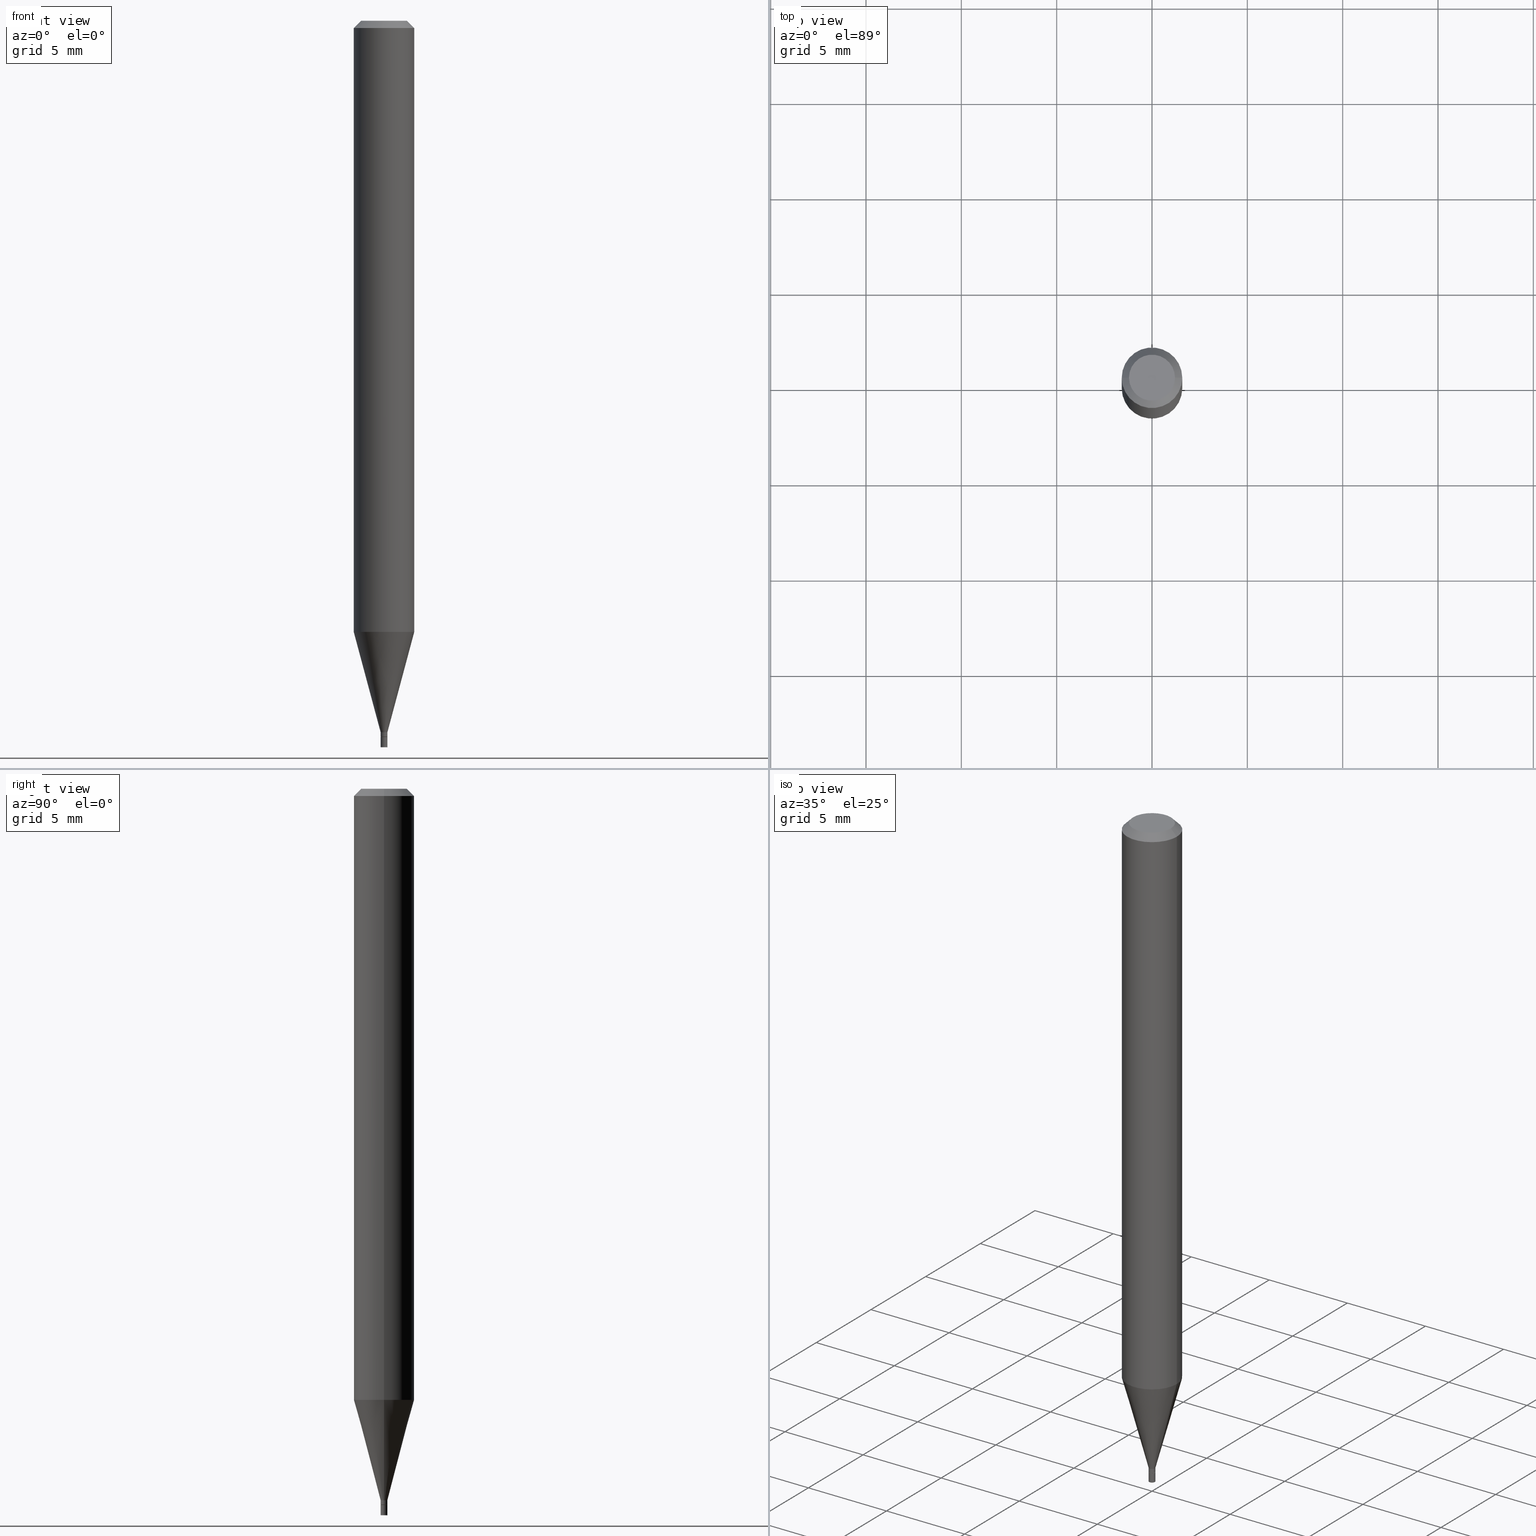
[diagram: canonical four-view strip — front | top / right | iso, engineering-drawing reading convention]
A machine part, canonical four-view strip (front | top / right | iso — engineering-drawing reading convention). The complete STEP part file that produces these views, byte-faithful:
ISO-10303-21;
HEADER;
FILE_DESCRIPTION (( 'STEP AP203' ),
    '1' );
FILE_NAME ('02247.STEP',
    '2024-03-18T19:56:50',
    ( '' ),
    ( '' ),
    'SwSTEP 2.0',
    'SolidWorks 2023',
    '' );
FILE_SCHEMA (( 'CONFIG_CONTROL_DESIGN' ));
ENDSEC;

DATA;
#1 = PRODUCT_DEFINITION ( 'UNKNOWN', '', #348, #64 ) ;
#2 = COORDINATED_UNIVERSAL_TIME_OFFSET ( 5, 0, .BEHIND. ) ;
#3 = LINE ( 'NONE', #331, #208 ) ;
#4 = VECTOR ( 'NONE', #338, 39.37007874015748854 ) ;
#5 = PERSON_AND_ORGANIZATION ( #27, #134 ) ;
#6 = CARTESIAN_POINT ( 'NONE',  ( 3.616848364347817323E-29, -5.163900900149012660E-15, -1.479000000000000092 ) ) ;
#7 = ADVANCED_FACE ( 'NONE', ( #453 ), #315, .T. ) ;
#8 = ORIENTED_EDGE ( 'NONE', *, *, #104, .F. ) ;
#9 = DIRECTION ( 'NONE',  ( -2.445468806185136597E-29, 3.491481338843145583E-15, 1.000000000000000000 ) ) ;
#10 = DIRECTION ( 'NONE',  ( 0.000000000000000000, 0.000000000000000000, 1.000000000000000000 ) ) ;
#11 = EDGE_LOOP ( 'NONE', ( #447, #314 ) ) ;
#12 = DIRECTION ( 'NONE',  ( -2.445468806185136597E-29, 3.491481338843145583E-15, 1.000000000000000000 ) ) ;
#13 = VERTEX_POINT ( 'NONE', #236 ) ;
#14 = CIRCLE ( 'NONE', #454, 0.007000000000000001013 ) ;
#15 = AXIS2_PLACEMENT_3D ( 'NONE', #267, #82, #375 ) ;
#16 = PERSON_AND_ORGANIZATION_ROLE ( 'creator' ) ;
#17 = DIRECTION ( 'NONE',  ( 1.000000000000000000, -6.982962677686273021E-15, 0.000000000000000000 ) ) ;
#18 = PLANE ( 'NONE',  #219 ) ;
#19 = ORIENTED_EDGE ( 'NONE', *, *, #178, .F. ) ;
#20 = CARTESIAN_POINT ( 'NONE',  ( -0.06249999999999999306, -3.961710467772130736E-15, -1.261871180179927610 ) ) ;
#21 = VERTEX_POINT ( 'NONE', #387 ) ;
#22 = CARTESIAN_POINT ( 'NONE',  ( -0.06250000000000000000, 3.840629472727444916E-16, -0.01499999999999999944 ) ) ;
#23 = ORIENTED_EDGE ( 'NONE', *, *, #67, .T. ) ;
#24 = APPROVAL_DATE_TIME ( #287, #244 ) ;
#25 = AXIS2_PLACEMENT_3D ( 'NONE', #139, #248, #103 ) ;
#26 = ORIENTED_EDGE ( 'NONE', *, *, #67, .F. ) ;
#27 = PERSON ( 'UNSPECIFIED', 'UNSPECIFIED', 'UNSPECIFIED', ('UNSPECIFIED'), ('UNSPECIFIED'), ('UNSPECIFIED') ) ;
#28 = ORIENTED_EDGE ( 'NONE', *, *, #359, .T. ) ;
#29 = DIRECTION ( 'NONE',  ( 1.000000000000000000, -6.982962677686267499E-15, 5.108144071313017768E-29 ) ) ;
#30 = APPROVAL_DATE_TIME ( #212, #386 ) ;
#31 = EDGE_CURVE ( 'NONE', #255, #21, #205, .T. ) ;
#32 = CONICAL_SURFACE ( 'NONE', #362, 0.06250000000000000000, 0.7853981633973876608 ) ;
#33 = LOCAL_TIME ( 15, 56, 50.00000000000000000, #385 ) ;
#34 = DATE_AND_TIME ( #455, #157 ) ;
#35 = DIRECTION ( 'NONE',  ( -2.445468806185136597E-29, 3.491481338843145583E-15, 1.000000000000000000 ) ) ;
#36 = ORIENTED_EDGE ( 'NONE', *, *, #363, .F. ) ;
#37 = FACE_OUTER_BOUND ( 'NONE', #192, .T. ) ;
#38 = VECTOR ( 'NONE', #98, 39.37007874015748143 ) ;
#39 = FACE_OUTER_BOUND ( 'NONE', #112, .T. ) ;
#40 = DIRECTION ( 'NONE',  ( 1.000000000000000000, -6.982962677686270655E-15, 0.000000000000000000 ) ) ;
#41 = CARTESIAN_POINT ( 'NONE',  ( -0.006500000000000000569, -5.117715622324605713E-15, -1.479000000000000092 ) ) ;
#42 = PERSON_AND_ORGANIZATION ( #27, #134 ) ;
#43 = ADVANCED_FACE ( 'NONE', ( #130 ), #376, .T. ) ;
#44 = LINE ( 'NONE', #337, #214 ) ;
#45 = EDGE_CURVE ( 'NONE', #207, #392, #268, .T. ) ;
#46 = ADVANCED_BREP_SHAPE_REPRESENTATION ( '02247', ( #328, #395, #431 ), #54 ) ;
#47 = VECTOR ( 'NONE', #76, 39.37007874015748143 ) ;
#48 =( NAMED_UNIT ( * ) PLANE_ANGLE_UNIT ( ) SI_UNIT ( $, .RADIAN. ) );
#49 = VERTEX_POINT ( 'NONE', #50 ) ;
#50 = CARTESIAN_POINT ( 'NONE',  ( 0.006500000000000000569, -5.209290157553973331E-15, -1.479000000000000092 ) ) ;
#51 = ORIENTED_EDGE ( 'NONE', *, *, #448, .T. ) ;
#52 = AXIS2_PLACEMENT_3D ( 'NONE', #284, #425, #29 ) ;
#53 = ADVANCED_FACE ( 'NONE', ( #411 ), #84, .F. ) ;
#54 =( GEOMETRIC_REPRESENTATION_CONTEXT ( 3 ) GLOBAL_UNCERTAINTY_ASSIGNED_CONTEXT ( ( #166 ) ) GLOBAL_UNIT_ASSIGNED_CONTEXT ( ( #380, #48, #196 ) ) REPRESENTATION_CONTEXT ( 'NONE', 'WORKASPACE' ) );
#55 = EDGE_CURVE ( 'NONE', #392, #197, #177, .T. ) ;
#56 = ORIENTED_EDGE ( 'NONE', *, *, #185, .F. ) ;
#57 = DIRECTION ( 'NONE',  ( 1.000000000000000000, -6.982962677686332186E-15, 0.000000000000000000 ) ) ;
#58 = DIRECTION ( 'NONE',  ( 1.000000000000000000, -6.982962677686257244E-15, 0.000000000000000000 ) ) ;
#59 = VERTEX_POINT ( 'NONE', #259 ) ;
#60 = DIRECTION ( 'NONE',  ( 1.000000000000000000, -6.982962677686265922E-15, 4.876176775795935793E-29 ) ) ;
#61 = ORIENTED_EDGE ( 'NONE', *, *, #312, .F. ) ;
#62 = CIRCLE ( 'NONE', #318, 0.006999999999999922951 ) ;
#63 = DIRECTION ( 'NONE',  ( -2.445468806185136877E-29, 3.491481338843145188E-15, 1.000000000000000000 ) ) ;
#64 = DESIGN_CONTEXT ( 'detailed design', #281, 'design' ) ;
#65 = CARTESIAN_POINT ( 'NONE',  ( 3.592393676285966338E-29, -5.128986086760581011E-15, -1.469000000000000083 ) ) ;
#66 = COORDINATED_UNIVERSAL_TIME_OFFSET ( 5, 0, .BEHIND. ) ;
#67 = EDGE_CURVE ( 'NONE', #277, #197, #215, .T. ) ;
#68 = ORIENTED_EDGE ( 'NONE', *, *, #450, .F. ) ;
#69 = PERSON_AND_ORGANIZATION ( #27, #134 ) ;
#70 = EDGE_CURVE ( 'NONE', #255, #381, #62, .T. ) ;
#71 = ADVANCED_FACE ( 'NONE', ( #295 ), #333, .T. ) ;
#72 = AXIS2_PLACEMENT_3D ( 'NONE', #378, #121, #91 ) ;
#73 = DIRECTION ( 'NONE',  ( -1.000000000000000000, 6.982962677686266711E-15, 0.000000000000000000 ) ) ;
#74 = CC_DESIGN_PERSON_AND_ORGANIZATION_ASSIGNMENT ( #69, #364, ( #200 ) ) ;
#75 = ORIENTED_EDGE ( 'NONE', *, *, #372, .F. ) ;
#76 = DIRECTION ( 'NONE',  ( -0.7071067811865642261, 7.493145998870414114E-15, 0.7071067811865309194 ) ) ;
#77 = CARTESIAN_POINT ( 'NONE',  ( -0.006999999999999920348, -5.079248095257373954E-15, -1.469000000000000083 ) ) ;
#78 = EDGE_LOOP ( 'NONE', ( #19, #321 ) ) ;
#79 = LINE ( 'NONE', #146, #327 ) ;
#80 = CIRCLE ( 'NONE', #301, 0.007000000000000001013 ) ;
#81 = DIRECTION ( 'NONE',  ( -1.000000000000000000, 6.982962677686266711E-15, 0.000000000000000000 ) ) ;
#82 = DIRECTION ( 'NONE',  ( -2.445468806185136597E-29, 3.491481338843145583E-15, 1.000000000000000000 ) ) ;
#83 = VERTEX_POINT ( 'NONE', #329 ) ;
#84 = PLANE ( 'NONE',  #72 ) ;
#85 = DIRECTION ( 'NONE',  ( 1.000000000000000000, -6.982962677686332186E-15, 0.000000000000000000 ) ) ;
#86 = LENGTH_MEASURE_WITH_UNIT ( LENGTH_MEASURE( 0.02539999999999999897 ), #275 );
#87 = AXIS2_PLACEMENT_3D ( 'NONE', #405, #366, #181 ) ;
#88 = AXIS2_PLACEMENT_3D ( 'NONE', #245, #310, #92 ) ;
#89 = PERSON_AND_ORGANIZATION_ROLE ( 'design_owner' ) ;
#90 = CARTESIAN_POINT ( 'NONE',  ( 0.06249999999999999306, -4.842234844977585811E-15, -1.261871180179927610 ) ) ;
#91 = DIRECTION ( 'NONE',  ( -1.000000000000000000, 6.982962677686265922E-15, -4.876176775795935793E-29 ) ) ;
#92 = DIRECTION ( 'NONE',  ( 1.000000000000000000, -6.982962677686266711E-15, 4.876176775795935232E-29 ) ) ;
#93 = EDGE_CURVE ( 'NONE', #59, #222, #3, .T. ) ;
#94 = ORIENTED_EDGE ( 'NONE', *, *, #204, .T. ) ;
#95 = DIMENSIONAL_EXPONENTS ( 1.000000000000000000, 0.000000000000000000, 0.000000000000000000, 0.000000000000000000, 0.000000000000000000, 0.000000000000000000, 0.000000000000000000 ) ;
#96 = ORIENTED_EDGE ( 'NONE', *, *, #45, .F. ) ;
#97 = DIRECTION ( 'NONE',  ( 1.000000000000000000, -6.982962677686257244E-15, 0.000000000000000000 ) ) ;
#98 = DIRECTION ( 'NONE',  ( -2.445468806185136877E-29, 3.491481338843145188E-15, 1.000000000000000000 ) ) ;
#99 = ORIENTED_EDGE ( 'NONE', *, *, #434, .T. ) ;
#100 = ORIENTED_EDGE ( 'NONE', *, *, #402, .F. ) ;
#101 = AXIS2_PLACEMENT_3D ( 'NONE', #65, #144, #290 ) ;
#102 = CARTESIAN_POINT ( 'NONE',  ( 3.085866608554036727E-29, -4.405799677622194141E-15, -1.261871180179927610 ) ) ;
#103 = DIRECTION ( 'NONE',  ( 1.000000000000000000, -6.982962677686265922E-15, 4.876176775795935793E-29 ) ) ;
#104 = EDGE_CURVE ( 'NONE', #270, #277, #325, .T. ) ;
#105 = COORDINATED_UNIVERSAL_TIME_OFFSET ( 5, 0, .BEHIND. ) ;
#106 = PRODUCT_DEFINITION_SHAPE ( 'NONE', 'NONE',  #1 ) ;
#107 = CONICAL_SURFACE ( 'NONE', #377, 0.006500000000000000569, 0.7853981633974718157 ) ;
#108 = CARTESIAN_POINT ( 'NONE',  ( -0.06250000000000000000, -1.784996739002358191E-15, -0.01499999999999999944 ) ) ;
#109 = DIRECTION ( 'NONE',  ( 1.000000000000000000, -6.982962677686257244E-15, 0.000000000000000000 ) ) ;
#110 = CARTESIAN_POINT ( 'NONE',  ( 3.085866608554036727E-29, -4.405799677622194141E-15, -1.261871180179927610 ) ) ;
#111 = DIRECTION ( 'NONE',  ( -2.445468806185136877E-29, 3.491481338843145188E-15, 1.000000000000000000 ) ) ;
#112 = EDGE_LOOP ( 'NONE', ( #412, #161, #280, #138 ) ) ;
#113 = CARTESIAN_POINT ( 'NONE',  ( 0.006999999999999920348, -5.177866825504383900E-15, -1.469000000000000083 ) ) ;
#114 = DIRECTION ( 'NONE',  ( 1.000000000000000000, -6.982962677686266711E-15, 4.876176775795935232E-29 ) ) ;
#115 = CARTESIAN_POINT ( 'NONE',  ( -0.006999999999999922951, -5.112417167976384888E-15, -1.478500000000000147 ) ) ;
#116 = COORDINATED_UNIVERSAL_TIME_OFFSET ( 5, 0, .BEHIND. ) ;
#117 = DIRECTION ( 'NONE',  ( 0.2588190451025213501, 1.565188264969621968E-15, 0.9659258262890682012 ) ) ;
#118 = CC_DESIGN_PERSON_AND_ORGANIZATION_ASSIGNMENT ( #456, #211, ( #348 ) ) ;
#119 = ORIENTED_EDGE ( 'NONE', *, *, #450, .T. ) ;
#120 = DATE_AND_TIME ( #265, #355 ) ;
#121 = DIRECTION ( 'NONE',  ( 2.438088387897960049E-29, -3.491481338843145188E-15, -1.000000000000000000 ) ) ;
#122 = FACE_OUTER_BOUND ( 'NONE', #202, .T. ) ;
#123 = DIRECTION ( 'NONE',  ( 1.000000000000000000, 0.000000000000000000, 0.000000000000000000 ) ) ;
#124 = CONICAL_SURFACE ( 'NONE', #399, 0.006999999999999920348, 0.2617993877991500740 ) ;
#125 = DIRECTION ( 'NONE',  ( -2.445468806185136597E-29, 3.491481338843145583E-15, 1.000000000000000000 ) ) ;
#126 = ADVANCED_FACE ( 'NONE', ( #261 ), #257, .T. ) ;
#127 = DIRECTION ( 'NONE',  ( 1.000000000000000000, -6.982962677686266711E-15, 4.876176775795935793E-29 ) ) ;
#128 = ORIENTED_EDGE ( 'NONE', *, *, #31, .T. ) ;
#129 = DIRECTION ( 'NONE',  ( -1.000000000000000000, 6.982962677686265922E-15, -4.876176775795935793E-29 ) ) ;
#130 = FACE_OUTER_BOUND ( 'NONE', #319, .T. ) ;
#131 = ORIENTED_EDGE ( 'NONE', *, *, #178, .T. ) ;
#132 = CONICAL_SURFACE ( 'NONE', #442, 0.06250000000000000000, 0.7853981633973876608 ) ;
#133 = VECTOR ( 'NONE', #349, 39.37007874015748143 ) ;
#134 = ORGANIZATION ( 'UNSPECIFIED', 'UNSPECIFIED', '' ) ;
#135 = ADVANCED_FACE ( 'NONE', ( #218 ), #132, .T. ) ;
#136 = EDGE_CURVE ( 'NONE', #13, #49, #163, .T. ) ;
#137 = FACE_OUTER_BOUND ( 'NONE', #78, .T. ) ;
#138 = ORIENTED_EDGE ( 'NONE', *, *, #223, .F. ) ;
#139 = CARTESIAN_POINT ( 'NONE',  ( 3.576687321579069994E-29, -5.368277968210015545E-15, -1.500000000000000222 ) ) ;
#140 = CC_DESIGN_PERSON_AND_ORGANIZATION_ASSIGNMENT ( #42, #89, ( #367 ) ) ;
#141 = VECTOR ( 'NONE', #63, 39.37007874015748143 ) ;
#142 = CC_DESIGN_APPROVAL ( #244, ( #200 ) ) ;
#143 = CALENDAR_DATE ( 2024, 18, 3 ) ;
#144 = DIRECTION ( 'NONE',  ( -2.445468806185136597E-29, 3.491481338843145583E-15, 1.000000000000000000 ) ) ;
#145 = DATE_TIME_ROLE ( 'classification_date' ) ;
#146 = CARTESIAN_POINT ( 'NONE',  ( -0.006999999999999922083, 4.973799150320645938E-17, -3.443254563178395329E-31 ) ) ;
#147 = CLOSED_SHELL ( 'NONE', ( #126, #354, #216, #240 ) ) ;
#148 = CIRCLE ( 'NONE', #406, 0.04749999999999999362 ) ;
#149 = APPROVAL_PERSON_ORGANIZATION ( #410, #386, #271 ) ;
#150 = DIRECTION ( 'NONE',  ( -2.445468806185136597E-29, 3.491481338843145583E-15, 1.000000000000000000 ) ) ;
#151 = DIRECTION ( 'NONE',  ( -2.445468806185136597E-29, 3.491481338843145583E-15, 1.000000000000000000 ) ) ;
#152 = CARTESIAN_POINT ( 'NONE',  ( 3.616848364347817323E-29, -5.163900900149012660E-15, -1.479000000000000092 ) ) ;
#153 = CALENDAR_DATE ( 2024, 18, 3 ) ;
#154 = DIRECTION ( 'NONE',  ( -2.445468806185136597E-29, 3.491481338843145583E-15, 1.000000000000000000 ) ) ;
#155 = DIRECTION ( 'NONE',  ( -2.445468806185136877E-29, 3.491481338843145188E-15, 1.000000000000000000 ) ) ;
#156 = AXIS2_PLACEMENT_3D ( 'NONE', #383, #339, #17 ) ;
#157 = LOCAL_TIME ( 15, 56, 50.00000000000000000, #105 ) ;
#158 = CC_DESIGN_DATE_AND_TIME_ASSIGNMENT ( #34, #145, ( #200 ) ) ;
#159 = EDGE_LOOP ( 'NONE', ( #28, #23, #264, #394 ) ) ;
#160 = CARTESIAN_POINT ( 'NONE',  ( 3.592393676285966338E-29, -5.128986086760581011E-15, -1.469000000000000083 ) ) ;
#161 = ORIENTED_EDGE ( 'NONE', *, *, #320, .T. ) ;
#162 = ADVANCED_FACE ( 'NONE', ( #37 ), #32, .T. ) ;
#163 = CIRCLE ( 'NONE', #238, 0.006500000000000000569 ) ;
#164 = EDGE_LOOP ( 'NONE', ( #168, #344, #195, #173 ) ) ;
#165 = CARTESIAN_POINT ( 'NONE',  ( 4.888073874384003304E-17, 0.006999999999994836741, -1.479000000000000092 ) ) ;
#166 = UNCERTAINTY_MEASURE_WITH_UNIT (LENGTH_MEASURE( 1.000000000000000082E-05 ), #380, 'distance_accuracy_value', 'NONE');
#167 = ORIENTED_EDGE ( 'NONE', *, *, #358, .T. ) ;
#168 = ORIENTED_EDGE ( 'NONE', *, *, #204, .F. ) ;
#169 = CARTESIAN_POINT ( 'NONE',  ( 3.616848364347817323E-29, -5.163900900149012660E-15, -1.479000000000000092 ) ) ;
#170 = ORIENTED_EDGE ( 'NONE', *, *, #304, .F. ) ;
#171 = VECTOR ( 'NONE', #436, 39.37007874015747433 ) ;
#172 = CIRCLE ( 'NONE', #15, 0.006999999999999920348 ) ;
#173 = ORIENTED_EDGE ( 'NONE', *, *, #408, .F. ) ;
#174 = EDGE_CURVE ( 'NONE', #381, #270, #79, .T. ) ;
#175 = CALENDAR_DATE ( 2024, 18, 3 ) ;
#176 = CC_DESIGN_PERSON_AND_ORGANIZATION_ASSIGNMENT ( #397, #428, ( #348 ) ) ;
#177 = CIRCLE ( 'NONE', #278, 0.06250000000000000000 ) ;
#178 = EDGE_CURVE ( 'NONE', #418, #59, #430, .T. ) ;
#179 = CARTESIAN_POINT ( 'NONE',  ( 0.000000000000000000, 0.000000000000000000, 0.000000000000000000 ) ) ;
#180 = AXIS2_PLACEMENT_3D ( 'NONE', #179, #35, #114 ) ;
#181 = DIRECTION ( 'NONE',  ( 1.000000000000000000, -6.982962677686266711E-15, 4.876176775795935793E-29 ) ) ;
#182 = ORIENTED_EDGE ( 'NONE', *, *, #45, .T. ) ;
#183 = DIRECTION ( 'NONE',  ( 1.000000000000000000, -6.982962677686257244E-15, 0.000000000000000000 ) ) ;
#184 = APPLICATION_PROTOCOL_DEFINITION ( 'international standard', 'config_control_design', 1994, #281 ) ;
#185 = EDGE_CURVE ( 'NONE', #277, #424, #229, .T. ) ;
#186 = DIRECTION ( 'NONE',  ( 1.000000000000000000, -6.982962677686270655E-15, 0.000000000000000000 ) ) ;
#187 = ORIENTED_EDGE ( 'NONE', *, *, #448, .F. ) ;
#188 = CLOSED_SHELL ( 'NONE', ( #465, #426, #162, #71, #323, #43, #266, #135, #53, #334, #7, #252 ) ) ;
#189 = CARTESIAN_POINT ( 'NONE',  ( 3.615625629944724521E-29, -5.162155159479591157E-15, -1.478500000000000147 ) ) ;
#190 = AXIS2_PLACEMENT_3D ( 'NONE', #357, #427, #60 ) ;
#191 = CARTESIAN_POINT ( 'NONE',  ( 0.06250000000000000000, -4.811533449433679005E-16, -0.01499999999999999944 ) ) ;
#192 = EDGE_LOOP ( 'NONE', ( #100, #182, #342, #61 ) ) ;
#193 = APPROVAL_STATUS ( 'not_yet_approved' ) ;
#194 = CARTESIAN_POINT ( 'NONE',  ( -4.460165479722938536E-44, 6.367934238710582481E-30, 1.823848854028390842E-15 ) ) ;
#195 = ORIENTED_EDGE ( 'NONE', *, *, #457, .T. ) ;
#196 =( NAMED_UNIT ( * ) SI_UNIT ( $, .STERADIAN. ) SOLID_ANGLE_UNIT ( ) );
#197 = VERTEX_POINT ( 'NONE', #108 ) ;
#198 = AXIS2_PLACEMENT_3D ( 'NONE', #404, #151, #466 ) ;
#199 = DIRECTION ( 'NONE',  ( -2.445468806185136597E-29, 3.491481338843145583E-15, 1.000000000000000000 ) ) ;
#200 = SECURITY_CLASSIFICATION ( '', '', #251 ) ;
#201 = CARTESIAN_POINT ( 'NONE',  ( 0.006999999999999922951, -5.211035898223394834E-15, -1.478500000000000147 ) ) ;
#202 = EDGE_LOOP ( 'NONE', ( #247, #462 ) ) ;
#203 = LINE ( 'NONE', #22, #388 ) ;
#204 = EDGE_CURVE ( 'NONE', #13, #381, #461, .T. ) ;
#205 = LINE ( 'NONE', #353, #133 ) ;
#206 = ORIENTED_EDGE ( 'NONE', *, *, #312, .T. ) ;
#207 = VERTEX_POINT ( 'NONE', #217 ) ;
#208 = VECTOR ( 'NONE', #155, 39.37007874015748143 ) ;
#209 = LOCAL_TIME ( 15, 56, 50.00000000000000000, #66 ) ;
#210 = APPROVAL ( #439, 'UNSPECIFIED' ) ;
#211 = PERSON_AND_ORGANIZATION_ROLE ( 'creator' ) ;
#212 = DATE_AND_TIME ( #143, #33 ) ;
#213 = AXIS2_PLACEMENT_3D ( 'NONE', #429, #403, #458 ) ;
#214 = VECTOR ( 'NONE', #345, 39.37007874015748143 ) ;
#215 = LINE ( 'NONE', #374, #370 ) ;
#216 = ADVANCED_FACE ( 'NONE', ( #39 ), #258, .T. ) ;
#217 = CARTESIAN_POINT ( 'NONE',  ( 0.04749999999999999362, -4.035134999187546083E-16, 1.823848854028393603E-15 ) ) ;
#218 = FACE_OUTER_BOUND ( 'NONE', #390, .T. ) ;
#219 = AXIS2_PLACEMENT_3D ( 'NONE', #165, #446, #129 ) ;
#220 = CARTESIAN_POINT ( 'NONE',  ( 3.668203209277705088E-31, -5.237222008264718399E-17, -0.01499999999999999944 ) ) ;
#221 = DIRECTION ( 'NONE',  ( 2.445468806185136597E-29, -3.491481338843145583E-15, -1.000000000000000000 ) ) ;
#222 = VERTEX_POINT ( 'NONE', #296 ) ;
#223 = EDGE_CURVE ( 'NONE', #222, #83, #80, .T. ) ;
#224 = PERSON_AND_ORGANIZATION ( #27, #134 ) ;
#225 = DIRECTION ( 'NONE',  ( 1.000000000000000000, -6.982962677686266711E-15, 0.000000000000000000 ) ) ;
#226 = EDGE_LOOP ( 'NONE', ( #330, #94, #231, #423 ) ) ;
#227 = APPROVAL_DATE_TIME ( #443, #210 ) ;
#228 = DIRECTION ( 'NONE',  ( -2.445468806185136597E-29, 3.491481338843145583E-15, 1.000000000000000000 ) ) ;
#229 = CIRCLE ( 'NONE', #249, 0.06250000000000000000 ) ;
#230 = CIRCLE ( 'NONE', #452, 0.06250000000000000000 ) ;
#231 = ORIENTED_EDGE ( 'NONE', *, *, #70, .F. ) ;
#232 = FACE_OUTER_BOUND ( 'NONE', #226, .T. ) ;
#233 = DIRECTION ( 'NONE',  ( 1.000000000000000000, -6.982962677686266711E-15, 4.876176775795935232E-29 ) ) ;
#234 = ORIENTED_EDGE ( 'NONE', *, *, #31, .F. ) ;
#235 = DATE_TIME_ROLE ( 'creation_date' ) ;
#236 = CARTESIAN_POINT ( 'NONE',  ( -0.006500000000000000569, -5.115066395150495301E-15, -1.479000000000000092 ) ) ;
#237 = LINE ( 'NONE', #421, #38 ) ;
#238 = AXIS2_PLACEMENT_3D ( 'NONE', #433, #368, #183 ) ;
#239 = ORIENTED_EDGE ( 'NONE', *, *, #408, .T. ) ;
#240 = ADVANCED_FACE ( 'NONE', ( #347 ), #18, .F. ) ;
#241 = CYLINDRICAL_SURFACE ( 'NONE', #88, 0.006999999999999922083 ) ;
#242 = CARTESIAN_POINT ( 'NONE',  ( -0.04749999999999999362, 3.578768372314242553E-16, 1.823848854028388475E-15 ) ) ;
#243 = EDGE_LOOP ( 'NONE', ( #26, #311, #282, #187 ) ) ;
#244 = APPROVAL ( #396, 'UNSPECIFIED' ) ;
#245 = CARTESIAN_POINT ( 'NONE',  ( 0.000000000000000000, 0.000000000000000000, 0.000000000000000000 ) ) ;
#246 = PLANE ( 'NONE',  #25 ) ;
#247 = ORIENTED_EDGE ( 'NONE', *, *, #463, .F. ) ;
#248 = DIRECTION ( 'NONE',  ( -2.438088387897960049E-29, 3.491481338843145188E-15, 1.000000000000000000 ) ) ;
#249 = AXIS2_PLACEMENT_3D ( 'NONE', #110, #432, #371 ) ;
#250 = DIRECTION ( 'NONE',  ( 1.000000000000000000, -6.982962677686262766E-15, 0.000000000000000000 ) ) ;
#251 = SECURITY_CLASSIFICATION_LEVEL ( 'unclassified' ) ;
#252 = ADVANCED_FACE ( 'NONE', ( #445 ), #343, .T. ) ;
#253 = PERSON_AND_ORGANIZATION ( #27, #134 ) ;
#254 = VECTOR ( 'NONE', #117, 39.37007874015747433 ) ;
#255 = VERTEX_POINT ( 'NONE', #201 ) ;
#256 = APPLICATION_CONTEXT ( 'configuration controlled 3d designs of mechanical parts and assemblies' ) ;
#257 = CYLINDRICAL_SURFACE ( 'NONE', #180, 0.007000000000000001013 ) ;
#258 = CYLINDRICAL_SURFACE ( 'NONE', #198, 0.007000000000000001013 ) ;
#259 = CARTESIAN_POINT ( 'NONE',  ( -0.007000000000000001013, -5.150823462703658756E-15, -1.500000000000000222 ) ) ;
#260 = EDGE_LOOP ( 'NONE', ( #283, #239, #128, #68 ) ) ;
#261 = FACE_OUTER_BOUND ( 'NONE', #449, .T. ) ;
#262 = EDGE_LOOP ( 'NONE', ( #308, #401, #274, #313 ) ) ;
#263 = AXIS2_PLACEMENT_3D ( 'NONE', #416, #199, #58 ) ;
#264 = ORIENTED_EDGE ( 'NONE', *, *, #55, .F. ) ;
#265 = CALENDAR_DATE ( 2024, 18, 3 ) ;
#266 = ADVANCED_FACE ( 'NONE', ( #391 ), #384, .T. ) ;
#267 = CARTESIAN_POINT ( 'NONE',  ( 3.592393676285966338E-29, -5.128986086760581011E-15, -1.469000000000000083 ) ) ;
#268 = LINE ( 'NONE', #191, #4 ) ;
#269 = DIRECTION ( 'NONE',  ( -2.445468806185136597E-29, 3.491481338843145583E-15, 1.000000000000000000 ) ) ;
#270 = VERTEX_POINT ( 'NONE', #417 ) ;
#271 = APPROVAL_ROLE ( '' ) ;
#272 = CARTESIAN_POINT ( 'NONE',  ( 0.000000000000000000, 0.000000000000000000, 0.000000000000000000 ) ) ;
#273 = APPLICATION_PROTOCOL_DEFINITION ( 'international standard', 'config_control_design', 1994, #256 ) ;
#274 = ORIENTED_EDGE ( 'NONE', *, *, #359, .F. ) ;
#275 =( LENGTH_UNIT ( ) NAMED_UNIT ( * ) SI_UNIT ( $, .METRE. ) );
#276 = DIRECTION ( 'NONE',  ( -2.445468806185136597E-29, 3.491481338843145583E-15, 1.000000000000000000 ) ) ;
#277 = VERTEX_POINT ( 'NONE', #20 ) ;
#278 = AXIS2_PLACEMENT_3D ( 'NONE', #444, #125, #225 ) ;
#279 = CC_DESIGN_APPROVAL ( #386, ( #348 ) ) ;
#280 = ORIENTED_EDGE ( 'NONE', *, *, #372, .T. ) ;
#281 = APPLICATION_CONTEXT ( 'configuration controlled 3d designs of mechanical parts and assemblies' ) ;
#282 = ORIENTED_EDGE ( 'NONE', *, *, #288, .T. ) ;
#283 = ORIENTED_EDGE ( 'NONE', *, *, #174, .F. ) ;
#284 = CARTESIAN_POINT ( 'NONE',  ( -4.460165479722938536E-44, 6.367934238710582481E-30, 1.823848854028390842E-15 ) ) ;
#285 = AXIS2_PLACEMENT_3D ( 'NONE', #272, #276, #233 ) ;
#286 = LOCAL_TIME ( 15, 56, 50.00000000000000000, #116 ) ;
#287 = DATE_AND_TIME ( #175, #209 ) ;
#288 = EDGE_CURVE ( 'NONE', #424, #392, #237, .T. ) ;
#289 = ORIENTED_EDGE ( 'NONE', *, *, #174, .T. ) ;
#290 = DIRECTION ( 'NONE',  ( 1.000000000000000000, -6.982962677686273021E-15, 0.000000000000000000 ) ) ;
#291 = SHAPE_DEFINITION_REPRESENTATION ( #106, #46 ) ;
#292 = DIRECTION ( 'NONE',  ( -2.445468806185136877E-29, 3.491481338843145188E-15, 1.000000000000000000 ) ) ;
#293 = CIRCLE ( 'NONE', #101, 0.006999999999999920348 ) ;
#294 = AXIS2_PLACEMENT_3D ( 'NONE', #169, #420, #97 ) ;
#295 = FACE_OUTER_BOUND ( 'NONE', #159, .T. ) ;
#296 = CARTESIAN_POINT ( 'NONE',  ( -0.007000000000000001013, -5.150823462703658756E-15, -1.479000000000000092 ) ) ;
#297 = CC_DESIGN_PERSON_AND_ORGANIZATION_ASSIGNMENT ( #224, #16, ( #1 ) ) ;
#298 = DIRECTION ( 'NONE',  ( -2.445468806185136597E-29, 3.491481338843145583E-15, 1.000000000000000000 ) ) ;
#299 = CARTESIAN_POINT ( 'NONE',  ( 0.007000000000000001013, -4.888073874380387486E-17, 3.413323743057155353E-31 ) ) ;
#300 = VERTEX_POINT ( 'NONE', #242 ) ;
#301 = AXIS2_PLACEMENT_3D ( 'NONE', #152, #298, #407 ) ;
#302 = DIRECTION ( 'NONE',  ( 1.000000000000000000, -6.982962677686266711E-15, 0.000000000000000000 ) ) ;
#303 = CARTESIAN_POINT ( 'NONE',  ( 3.615625629944724521E-29, -5.162155159479591157E-15, -1.478500000000000147 ) ) ;
#304 = EDGE_CURVE ( 'NONE', #83, #222, #14, .T. ) ;
#305 = ORIENTED_EDGE ( 'NONE', *, *, #402, .T. ) ;
#306 = DIRECTION ( 'NONE',  ( 1.000000000000000000, -6.982962677686267499E-15, 5.108144071313017768E-29 ) ) ;
#307 = DIRECTION ( 'NONE',  ( -2.445468806185136597E-29, 3.491481338843145583E-15, 1.000000000000000000 ) ) ;
#308 = ORIENTED_EDGE ( 'NONE', *, *, #363, .T. ) ;
#309 = AXIS2_PLACEMENT_3D ( 'NONE', #102, #360, #250 ) ;
#310 = DIRECTION ( 'NONE',  ( -2.445468806185136597E-29, 3.491481338843145583E-15, 1.000000000000000000 ) ) ;
#311 = ORIENTED_EDGE ( 'NONE', *, *, #185, .T. ) ;
#312 = EDGE_CURVE ( 'NONE', #300, #197, #203, .T. ) ;
#313 = ORIENTED_EDGE ( 'NONE', *, *, #434, .F. ) ;
#314 = ORIENTED_EDGE ( 'NONE', *, *, #223, .T. ) ;
#315 = CONICAL_SURFACE ( 'NONE', #263, 0.006500000000000000569, 0.7853981633974718157 ) ;
#316 = FACE_OUTER_BOUND ( 'NONE', #441, .T. ) ;
#317 = PLANE ( 'NONE',  #190 ) ;
#318 = AXIS2_PLACEMENT_3D ( 'NONE', #303, #150, #186 ) ;
#319 = EDGE_LOOP ( 'NONE', ( #8, #119, #99, #56 ) ) ;
#320 = EDGE_CURVE ( 'NONE', #59, #418, #335, .T. ) ;
#321 = ORIENTED_EDGE ( 'NONE', *, *, #320, .F. ) ;
#322 = APPROVAL_ROLE ( '' ) ;
#323 = ADVANCED_FACE ( 'NONE', ( #379 ), #124, .T. ) ;
#324 = LINE ( 'NONE', #299, #141 ) ;
#325 = LINE ( 'NONE', #77, #171 ) ;
#326 = CARTESIAN_POINT ( 'NONE',  ( 3.668203209277705088E-31, -5.237222008264718399E-17, -0.01499999999999999944 ) ) ;
#327 = VECTOR ( 'NONE', #292, 39.37007874015748143 ) ;
#328 = MANIFOLD_SOLID_BREP ( 'Body-Move/Copy2[1]', #147 ) ;
#329 = CARTESIAN_POINT ( 'NONE',  ( 0.007000000000000001013, -5.212781638892817127E-15, -1.479000000000000092 ) ) ;
#330 = ORIENTED_EDGE ( 'NONE', *, *, #463, .T. ) ;
#331 = CARTESIAN_POINT ( 'NONE',  ( -0.007000000000000001013, 4.973799150320702021E-17, -3.443254563178434303E-31 ) ) ;
#332 = APPROVAL_ROLE ( '' ) ;
#333 = CYLINDRICAL_SURFACE ( 'NONE', #87, 0.06250000000000000000 ) ;
#334 = ADVANCED_FACE ( 'NONE', ( #122 ), #317, .F. ) ;
#335 = CIRCLE ( 'NONE', #346, 0.007000000000000001013 ) ;
#336 = CC_DESIGN_APPROVAL ( #210, ( #1 ) ) ;
#337 = CARTESIAN_POINT ( 'NONE',  ( 0.006500000000000000569, -5.209290157553973331E-15, -1.479000000000000092 ) ) ;
#338 = DIRECTION ( 'NONE',  ( 0.7071067811865044961, -7.319954787623109317E-15, -0.7071067811865903163 ) ) ;
#339 = DIRECTION ( 'NONE',  ( -2.445468806185136597E-29, 3.491481338843145583E-15, 1.000000000000000000 ) ) ;
#340 = CARTESIAN_POINT ( 'NONE',  ( 3.616848364347817323E-29, -5.163900900149012660E-15, -1.479000000000000092 ) ) ;
#341 = CARTESIAN_POINT ( 'NONE',  ( 0.000000000000000000, 0.000000000000000000, 0.000000000000000000 ) ) ;
#342 = ORIENTED_EDGE ( 'NONE', *, *, #55, .T. ) ;
#343 = CYLINDRICAL_SURFACE ( 'NONE', #285, 0.006999999999999922083 ) ;
#344 = ORIENTED_EDGE ( 'NONE', *, *, #136, .T. ) ;
#345 = DIRECTION ( 'NONE',  ( 0.7071067811865642261, -2.468850131082431399E-15, 0.7071067811865309194 ) ) ;
#346 = AXIS2_PLACEMENT_3D ( 'NONE', #438, #269, #85 ) ;
#347 = FACE_OUTER_BOUND ( 'NONE', #11, .T. ) ;
#348 = PRODUCT_DEFINITION_FORMATION_WITH_SPECIFIED_SOURCE ( 'ANY', '', #367, .NOT_KNOWN. ) ;
#349 = DIRECTION ( 'NONE',  ( -2.445468806185136877E-29, 3.491481338843145188E-15, 1.000000000000000000 ) ) ;
#350 = CARTESIAN_POINT ( 'NONE',  ( 0.000000000000000000, 0.000000000000000000, 0.000000000000000000 ) ) ;
#351 = EDGE_LOOP ( 'NONE', ( #167, #305 ) ) ;
#352 = DIRECTION ( 'NONE',  ( -0.7071067811865044961, 2.468850131081806621E-15, -0.7071067811865903163 ) ) ;
#353 = CARTESIAN_POINT ( 'NONE',  ( 0.006999999999999922083, -4.888073874380332019E-17, 3.413323743057116817E-31 ) ) ;
#354 = ADVANCED_FACE ( 'NONE', ( #137 ), #246, .F. ) ;
#355 = LOCAL_TIME ( 15, 56, 50.00000000000000000, #2 ) ;
#356 = ORIENTED_EDGE ( 'NONE', *, *, #93, .T. ) ;
#357 = CARTESIAN_POINT ( 'NONE',  ( 3.616848364347817323E-29, -5.163900900149012660E-15, -1.479000000000000092 ) ) ;
#358 = EDGE_CURVE ( 'NONE', #300, #207, #451, .T. ) ;
#359 = EDGE_CURVE ( 'NONE', #424, #277, #435, .T. ) ;
#360 = DIRECTION ( 'NONE',  ( -2.445468806185136597E-29, 3.491481338843145583E-15, 1.000000000000000000 ) ) ;
#361 = AXIS2_PLACEMENT_3D ( 'NONE', #350, #12, #127 ) ;
#362 = AXIS2_PLACEMENT_3D ( 'NONE', #326, #221, #81 ) ;
#363 = EDGE_CURVE ( 'NONE', #21, #270, #293, .T. ) ;
#364 = PERSON_AND_ORGANIZATION_ROLE ( 'classification_officer' ) ;
#365 = CC_DESIGN_DATE_AND_TIME_ASSIGNMENT ( #120, #235, ( #1 ) ) ;
#366 = DIRECTION ( 'NONE',  ( -2.445468806185136597E-29, 3.491481338843145583E-15, 1.000000000000000000 ) ) ;
#367 = PRODUCT ( '02247', '02247', '', ( #409 ) ) ;
#368 = DIRECTION ( 'NONE',  ( -2.445468806185136597E-29, 3.491481338843145583E-15, 1.000000000000000000 ) ) ;
#369 = DIRECTION ( 'NONE',  ( 2.445468806185136597E-29, -3.491481338843145583E-15, -1.000000000000000000 ) ) ;
#370 = VECTOR ( 'NONE', #111, 39.37007874015748143 ) ;
#371 = DIRECTION ( 'NONE',  ( 1.000000000000000000, -6.982962677686262766E-15, 0.000000000000000000 ) ) ;
#372 = EDGE_CURVE ( 'NONE', #418, #83, #324, .T. ) ;
#373 = CARTESIAN_POINT ( 'NONE',  ( 0.06250000000000000000, -4.888073874380388472E-16, -0.01499999999999999944 ) ) ;
#374 = CARTESIAN_POINT ( 'NONE',  ( -0.06250000000000000000, 4.440892098500626162E-16, -3.074334431409316114E-30 ) ) ;
#375 = DIRECTION ( 'NONE',  ( 1.000000000000000000, -6.982962677686273021E-15, 0.000000000000000000 ) ) ;
#376 = CONICAL_SURFACE ( 'NONE', #156, 0.006999999999999920348, 0.2617993877991500740 ) ;
#377 = AXIS2_PLACEMENT_3D ( 'NONE', #6, #460, #109 ) ;
#378 = CARTESIAN_POINT ( 'NONE',  ( 3.316907271900976096E-16, 0.04749999999999999362, 7.460790634191459752E-16 ) ) ;
#379 = FACE_OUTER_BOUND ( 'NONE', #262, .T. ) ;
#380 =( CONVERSION_BASED_UNIT ( 'INCH', #86 ) LENGTH_UNIT ( ) NAMED_UNIT ( #95 ) );
#381 = VERTEX_POINT ( 'NONE', #115 ) ;
#382 = LINE ( 'NONE', #113, #254 ) ;
#383 = CARTESIAN_POINT ( 'NONE',  ( 3.592393676285966338E-29, -5.128986086760581011E-15, -1.469000000000000083 ) ) ;
#384 = CYLINDRICAL_SURFACE ( 'NONE', #361, 0.06250000000000000000 ) ;
#385 = COORDINATED_UNIVERSAL_TIME_OFFSET ( 5, 0, .BEHIND. ) ;
#386 = APPROVAL ( #193, 'UNSPECIFIED' ) ;
#387 = CARTESIAN_POINT ( 'NONE',  ( 0.006999999999999920348, -5.177866825504383900E-15, -1.469000000000000083 ) ) ;
#388 = VECTOR ( 'NONE', #352, 39.37007874015748854 ) ;
#389 = CIRCLE ( 'NONE', #294, 0.006500000000000000569 ) ;
#390 = EDGE_LOOP ( 'NONE', ( #96, #393, #206, #51 ) ) ;
#391 = FACE_OUTER_BOUND ( 'NONE', #243, .T. ) ;
#392 = VERTEX_POINT ( 'NONE', #373 ) ;
#393 = ORIENTED_EDGE ( 'NONE', *, *, #358, .F. ) ;
#394 = ORIENTED_EDGE ( 'NONE', *, *, #288, .F. ) ;
#395 = MANIFOLD_SOLID_BREP ( 'Body-Move/Copy2[2]', #188 ) ;
#396 = APPROVAL_STATUS ( 'not_yet_approved' ) ;
#397 = PERSON_AND_ORGANIZATION ( #27, #134 ) ;
#398 = CARTESIAN_POINT ( 'NONE',  ( 3.668203209277705088E-31, -5.237222008264718399E-17, -0.01499999999999999944 ) ) ;
#399 = AXIS2_PLACEMENT_3D ( 'NONE', #160, #9, #440 ) ;
#400 = APPROVAL_PERSON_ORGANIZATION ( #5, #210, #332 ) ;
#401 = ORIENTED_EDGE ( 'NONE', *, *, #104, .T. ) ;
#402 = EDGE_CURVE ( 'NONE', #207, #300, #148, .T. ) ;
#403 = DIRECTION ( 'NONE',  ( -2.445468806185136597E-29, 3.491481338843145583E-15, 1.000000000000000000 ) ) ;
#404 = CARTESIAN_POINT ( 'NONE',  ( 0.000000000000000000, 0.000000000000000000, 0.000000000000000000 ) ) ;
#405 = CARTESIAN_POINT ( 'NONE',  ( 0.000000000000000000, 0.000000000000000000, 0.000000000000000000 ) ) ;
#406 = AXIS2_PLACEMENT_3D ( 'NONE', #194, #228, #306 ) ;
#407 = DIRECTION ( 'NONE',  ( 1.000000000000000000, -6.982962677686332186E-15, 0.000000000000000000 ) ) ;
#408 = EDGE_CURVE ( 'NONE', #381, #255, #413, .T. ) ;
#409 = MECHANICAL_CONTEXT ( 'NONE', #256, 'mechanical' ) ;
#410 = PERSON_AND_ORGANIZATION ( #27, #134 ) ;
#411 = FACE_OUTER_BOUND ( 'NONE', #351, .T. ) ;
#412 = ORIENTED_EDGE ( 'NONE', *, *, #93, .F. ) ;
#413 = CIRCLE ( 'NONE', #419, 0.006999999999999922951 ) ;
#414 = APPROVAL_PERSON_ORGANIZATION ( #253, #244, #322 ) ;
#415 = DIRECTION ( 'NONE',  ( -2.445468806185136597E-29, 3.491481338843145583E-15, 1.000000000000000000 ) ) ;
#416 = CARTESIAN_POINT ( 'NONE',  ( 3.616848364347817323E-29, -5.163900900149012660E-15, -1.479000000000000092 ) ) ;
#417 = CARTESIAN_POINT ( 'NONE',  ( -0.006999999999999920348, -4.520479281514752345E-15, -1.469000000000000083 ) ) ;
#418 = VERTEX_POINT ( 'NONE', #464 ) ;
#419 = AXIS2_PLACEMENT_3D ( 'NONE', #189, #415, #40 ) ;
#420 = DIRECTION ( 'NONE',  ( -2.445468806185136597E-29, 3.491481338843145583E-15, 1.000000000000000000 ) ) ;
#421 = CARTESIAN_POINT ( 'NONE',  ( 0.06250000000000000000, -4.364351673553916694E-16, 3.047610484872459871E-30 ) ) ;
#422 = CC_DESIGN_SECURITY_CLASSIFICATION ( #200, ( #348 ) ) ;
#423 = ORIENTED_EDGE ( 'NONE', *, *, #457, .F. ) ;
#424 = VERTEX_POINT ( 'NONE', #90 ) ;
#425 = DIRECTION ( 'NONE',  ( -2.445468806185136597E-29, 3.491481338843145583E-15, 1.000000000000000000 ) ) ;
#426 = ADVANCED_FACE ( 'NONE', ( #232 ), #107, .T. ) ;
#427 = DIRECTION ( 'NONE',  ( -2.438088387897960049E-29, 3.491481338843145188E-15, 1.000000000000000000 ) ) ;
#428 = PERSON_AND_ORGANIZATION_ROLE ( 'design_supplier' ) ;
#429 = CARTESIAN_POINT ( 'NONE',  ( 3.668203209277704895E-29, -5.237222008264718177E-15, -1.500000000000000222 ) ) ;
#430 = CIRCLE ( 'NONE', #213, 0.007000000000000001013 ) ;
#431 = AXIS2_PLACEMENT_3D ( 'NONE', #341, #10, #123 ) ;
#432 = DIRECTION ( 'NONE',  ( -2.445468806185136597E-29, 3.491481338843145583E-15, 1.000000000000000000 ) ) ;
#433 = CARTESIAN_POINT ( 'NONE',  ( 3.616848364347817323E-29, -5.163900900149012660E-15, -1.479000000000000092 ) ) ;
#434 = EDGE_CURVE ( 'NONE', #21, #424, #382, .T. ) ;
#435 = CIRCLE ( 'NONE', #309, 0.06250000000000000000 ) ;
#436 = DIRECTION ( 'NONE',  ( -0.2588190451025213501, 5.211531920934551042E-15, 0.9659258262890682012 ) ) ;
#437 = ORIENTED_EDGE ( 'NONE', *, *, #70, .T. ) ;
#438 = CARTESIAN_POINT ( 'NONE',  ( 3.668203209277704895E-29, -5.237222008264718177E-15, -1.500000000000000222 ) ) ;
#439 = APPROVAL_STATUS ( 'not_yet_approved' ) ;
#440 = DIRECTION ( 'NONE',  ( 1.000000000000000000, -6.982962677686273021E-15, 0.000000000000000000 ) ) ;
#441 = EDGE_LOOP ( 'NONE', ( #437, #289, #36, #234 ) ) ;
#442 = AXIS2_PLACEMENT_3D ( 'NONE', #398, #369, #73 ) ;
#443 = DATE_AND_TIME ( #153, #286 ) ;
#444 = CARTESIAN_POINT ( 'NONE',  ( 3.668203209277705088E-31, -5.237222008264718399E-17, -0.01499999999999999944 ) ) ;
#445 = FACE_OUTER_BOUND ( 'NONE', #260, .T. ) ;
#446 = DIRECTION ( 'NONE',  ( 2.438088387897960049E-29, -3.491481338843145188E-15, -1.000000000000000000 ) ) ;
#447 = ORIENTED_EDGE ( 'NONE', *, *, #304, .T. ) ;
#448 = EDGE_CURVE ( 'NONE', #197, #392, #230, .T. ) ;
#449 = EDGE_LOOP ( 'NONE', ( #131, #356, #170, #75 ) ) ;
#450 = EDGE_CURVE ( 'NONE', #270, #21, #172, .T. ) ;
#451 = CIRCLE ( 'NONE', #52, 0.04749999999999999362 ) ;
#452 = AXIS2_PLACEMENT_3D ( 'NONE', #220, #154, #302 ) ;
#453 = FACE_OUTER_BOUND ( 'NONE', #164, .T. ) ;
#454 = AXIS2_PLACEMENT_3D ( 'NONE', #340, #307, #57 ) ;
#455 = CALENDAR_DATE ( 2024, 18, 3 ) ;
#456 = PERSON_AND_ORGANIZATION ( #27, #134 ) ;
#457 = EDGE_CURVE ( 'NONE', #49, #255, #44, .T. ) ;
#458 = DIRECTION ( 'NONE',  ( 1.000000000000000000, -6.982962677686332186E-15, 0.000000000000000000 ) ) ;
#459 = PRODUCT_RELATED_PRODUCT_CATEGORY ( 'detail', '', ( #367 ) ) ;
#460 = DIRECTION ( 'NONE',  ( -2.445468806185136597E-29, 3.491481338843145583E-15, 1.000000000000000000 ) ) ;
#461 = LINE ( 'NONE', #41, #47 ) ;
#462 = ORIENTED_EDGE ( 'NONE', *, *, #136, .F. ) ;
#463 = EDGE_CURVE ( 'NONE', #49, #13, #389, .T. ) ;
#464 = CARTESIAN_POINT ( 'NONE',  ( 0.007000000000000001013, -5.286102747008522643E-15, -1.500000000000000222 ) ) ;
#465 = ADVANCED_FACE ( 'NONE', ( #316 ), #241, .T. ) ;
#466 = DIRECTION ( 'NONE',  ( 1.000000000000000000, -6.982962677686266711E-15, 4.876176775795935232E-29 ) ) ;
ENDSEC;
END-ISO-10303-21;
